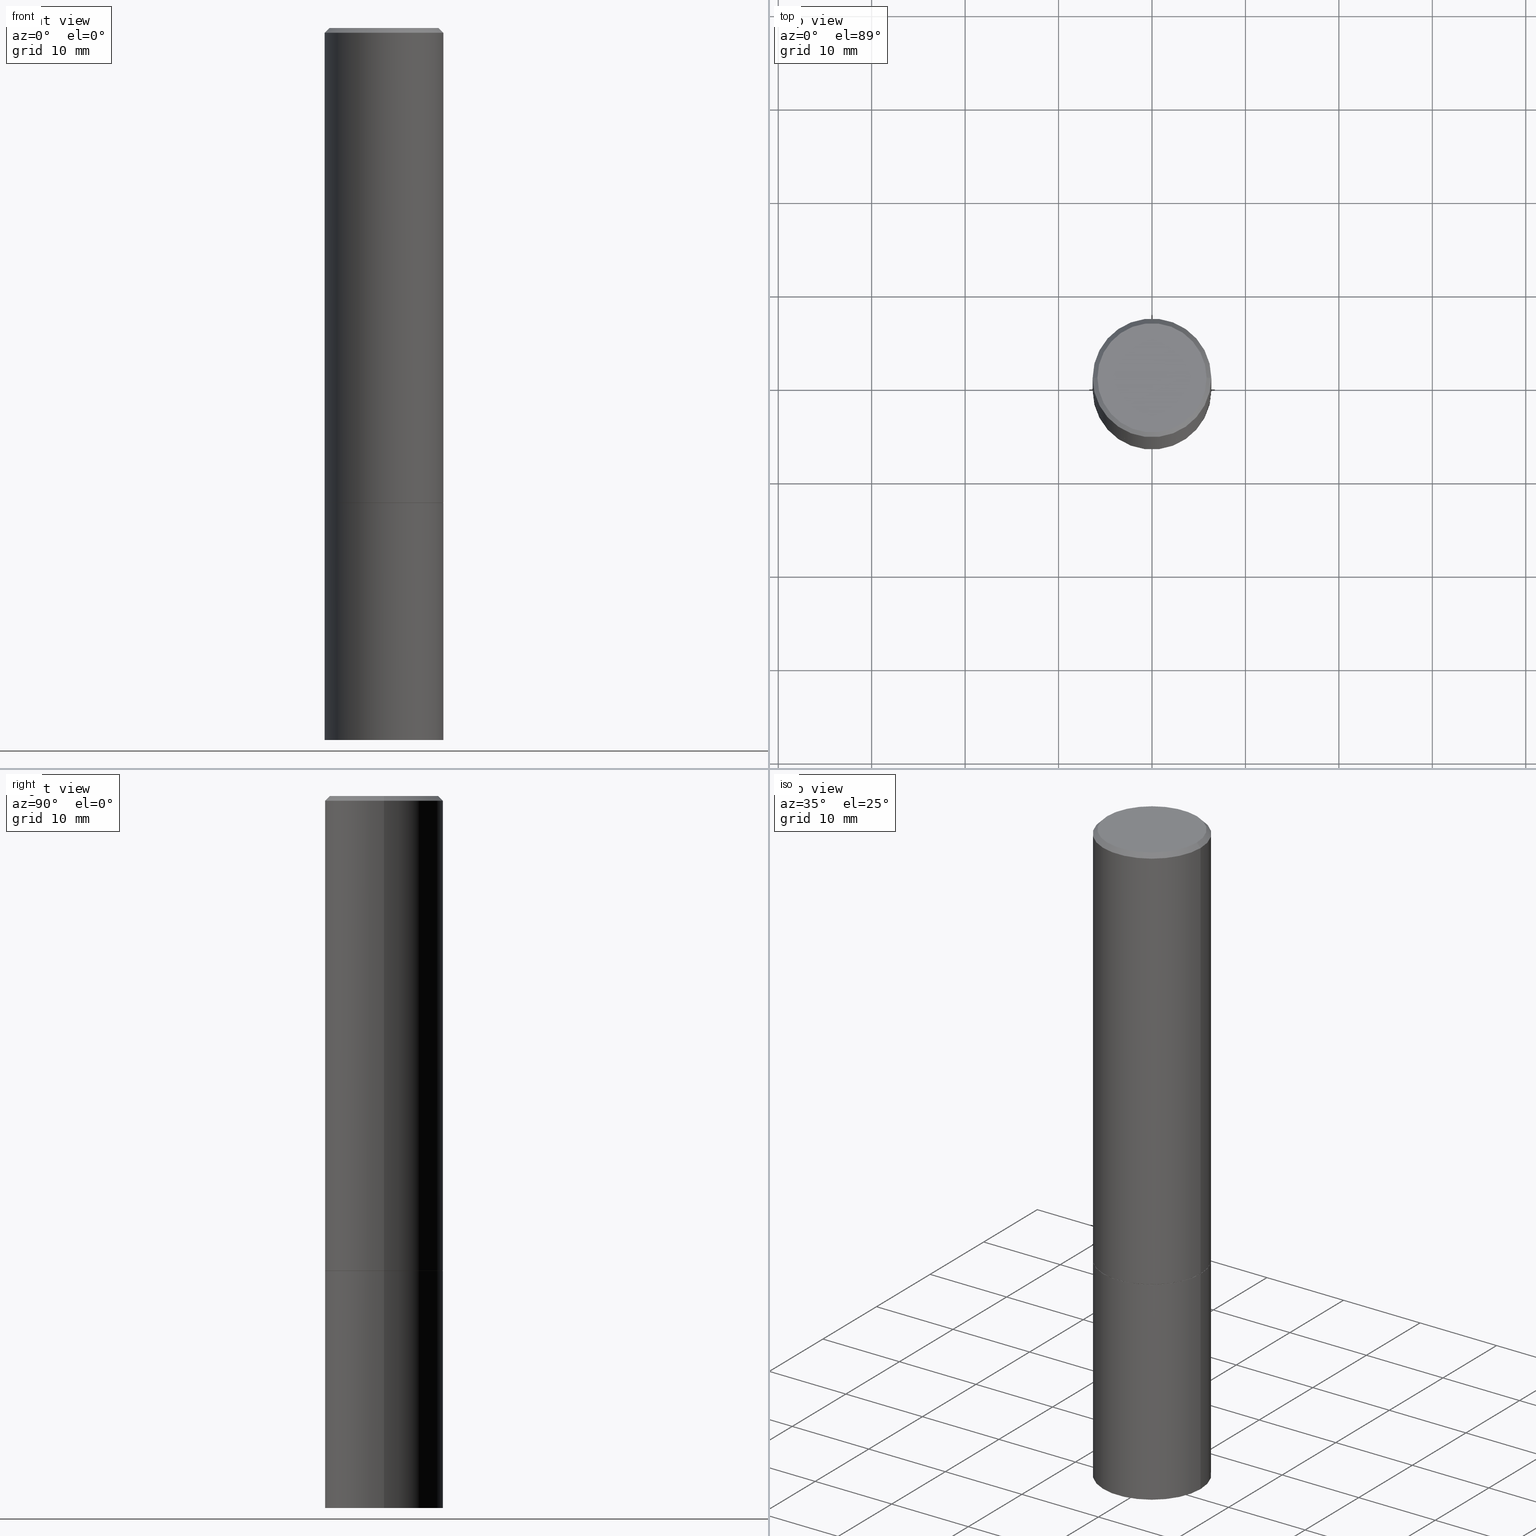
[diagram: canonical four-view strip — front | top / right | iso, engineering-drawing reading convention]
A machine part, canonical four-view strip (front | top / right | iso — engineering-drawing reading convention). The complete STEP part file that produces these views, byte-faithful:
ISO-10303-21;
HEADER;
FILE_DESCRIPTION (( 'STEP AP203' ),
    '1' );
FILE_NAME ('34865.STEP',
    '2024-02-27T18:03:12',
    ( '' ),
    ( '' ),
    'SwSTEP 2.0',
    'SolidWorks 2023',
    '' );
FILE_SCHEMA (( 'CONFIG_CONTROL_DESIGN' ));
ENDSEC;

DATA;
#1 = DIRECTION ( 'NONE',  ( 0.7071067811865469066, -7.319954787623254468E-15, -0.7071067811865481278 ) ) ;
#2 = ADVANCED_FACE ( 'NONE', ( #114 ), #49, .T. ) ;
#3 = FACE_OUTER_BOUND ( 'NONE', #57, .T. ) ;
#4 = FACE_OUTER_BOUND ( 'NONE', #78, .T. ) ;
#5 = DIRECTION ( 'NONE',  ( 0.000000000000000000, 0.000000000000000000, 1.000000000000000000 ) ) ;
#6 = AXIS2_PLACEMENT_3D ( 'NONE', #82, #31, #316 ) ;
#7 = AXIS2_PLACEMENT_3D ( 'NONE', #90, #5, #117 ) ;
#8 = DATE_TIME_ROLE ( 'creation_date' ) ;
#9 = EDGE_CURVE ( 'NONE', #105, #18, #268, .T. ) ;
#10 = AXIS2_PLACEMENT_3D ( 'NONE', #226, #342, #59 ) ;
#11 = LOCAL_TIME ( 13, 3, 12.00000000000000000, #120 ) ;
#12 = APPROVAL_STATUS ( 'not_yet_approved' ) ;
#13 = CC_DESIGN_DATE_AND_TIME_ASSIGNMENT ( #297, #42, ( #127 ) ) ;
#14 = ORIENTED_EDGE ( 'NONE', *, *, #143, .F. ) ;
#15 = CARTESIAN_POINT ( 'NONE',  ( 0.2299999999999997047, -1.681434332853597236E-15, 4.268512490111905999E-18 ) ) ;
#16 = ORIENTED_EDGE ( 'NONE', *, *, #103, .T. ) ;
#17 = LINE ( 'NONE', #246, #206 ) ;
#18 = VERTEX_POINT ( 'NONE', #263 ) ;
#19 = PERSON_AND_ORGANIZATION_ROLE ( 'design_supplier' ) ;
#20 = DIRECTION ( 'NONE',  ( -2.445468806185136597E-29, 3.491481338843145583E-15, 1.000000000000000000 ) ) ;
#21 = ORIENTED_EDGE ( 'NONE', *, *, #96, .F. ) ;
#22 = CYLINDRICAL_SURFACE ( 'NONE', #149, 0.2500000000000000000 ) ;
#23 = ORIENTED_EDGE ( 'NONE', *, *, #285, .T. ) ;
#24 = EDGE_CURVE ( 'NONE', #269, #311, #121, .T. ) ;
#25 = LINE ( 'NONE', #211, #298 ) ;
#26 = CIRCLE ( 'NONE', #158, 0.2500000000000000000 ) ;
#27 = DIRECTION ( 'NONE',  ( 1.000000000000000000, -6.982962677686266711E-15, 4.876225828469315047E-29 ) ) ;
#28 = DIRECTION ( 'NONE',  ( 1.000000000000000000, -6.982962677686266711E-15, 4.876176775795935793E-29 ) ) ;
#29 = VERTEX_POINT ( 'NONE', #139 ) ;
#30 = CYLINDRICAL_SURFACE ( 'NONE', #261, 0.2500000000000000000 ) ;
#31 = DIRECTION ( 'NONE',  ( -2.445468806185136597E-29, 3.491481338843145583E-15, 1.000000000000000000 ) ) ;
#32 = AXIS2_PLACEMENT_3D ( 'NONE', #33, #85, #27 ) ;
#33 = CARTESIAN_POINT ( 'NONE',  ( -1.043851414335219820E-46, 1.490343170380447200E-32, 4.268512490100411279E-18 ) ) ;
#34 = PRODUCT_DEFINITION ( 'UNKNOWN', '', #255, #352 ) ;
#35 = DIRECTION ( 'NONE',  ( 1.000000000000000000, -6.982962677686262766E-15, 0.000000000000000000 ) ) ;
#36 = EDGE_CURVE ( 'NONE', #18, #210, #260, .T. ) ;
#37 = MANIFOLD_SOLID_BREP ( 'Body-Move/Copy2[2]', #218 ) ;
#38 = VECTOR ( 'NONE', #364, 39.37007874015748143 ) ;
#39 = CALENDAR_DATE ( 2024, 27, 2 ) ;
#40 = EDGE_CURVE ( 'NONE', #269, #210, #109, .T. ) ;
#41 = APPROVAL_ROLE ( '' ) ;
#42 = DATE_TIME_ROLE ( 'classification_date' ) ;
#43 = VERTEX_POINT ( 'NONE', #224 ) ;
#44 = CARTESIAN_POINT ( 'NONE',  ( -0.2499999999999998612, 1.776356839400249479E-15, -1.229733772563725745E-29 ) ) ;
#45 = ORIENTED_EDGE ( 'NONE', *, *, #231, .T. ) ;
#46 = CALENDAR_DATE ( 2024, 27, 2 ) ;
#47 = DIRECTION ( 'NONE',  ( -2.445468806185136877E-29, 3.491481338843145188E-15, 1.000000000000000000 ) ) ;
#48 = ORIENTED_EDGE ( 'NONE', *, *, #220, .T. ) ;
#49 = CONICAL_SURFACE ( 'NONE', #75, 0.2499999999999997224, 0.7853981633974473908 ) ;
#50 = CARTESIAN_POINT ( 'NONE',  ( 4.890937612370287172E-31, -6.982962677686310098E-17, -0.02000000000000005593 ) ) ;
#51 = ORIENTED_EDGE ( 'NONE', *, *, #285, .F. ) ;
#52 = DIRECTION ( 'NONE',  ( -1.000000000000000000, 6.982962677686265922E-15, -4.876176775795935793E-29 ) ) ;
#53 = EDGE_LOOP ( 'NONE', ( #217, #157, #327, #245 ) ) ;
#54 = CARTESIAN_POINT ( 'NONE',  ( 0.2500000000000000000, -1.745740669421566678E-15, 1.219044193948983948E-29 ) ) ;
#55 = DIRECTION ( 'NONE',  ( 1.000000000000000000, -6.982962677686266711E-15, 0.000000000000000000 ) ) ;
#56 = CARTESIAN_POINT ( 'NONE',  ( 0.2489999999999999991, -8.721720384430172617E-15, -2.000000000000000444 ) ) ;
#57 = EDGE_LOOP ( 'NONE', ( #48, #274, #221, #51 ) ) ;
#58 = CARTESIAN_POINT ( 'NONE',  ( 7.336406418555409790E-29, -1.047444401652943635E-14, -3.000000000000000444 ) ) ;
#59 = DIRECTION ( 'NONE',  ( 1.000000000000000000, -6.982962677686266711E-15, 0.000000000000000000 ) ) ;
#60 = APPROVAL_ROLE ( '' ) ;
#61 = DIRECTION ( 'NONE',  ( -1.000000000000000000, 6.982962677686266711E-15, 0.000000000000000000 ) ) ;
#62 = APPROVAL_ROLE ( '' ) ;
#63 = APPROVAL_DATE_TIME ( #321, #132 ) ;
#64 = AXIS2_PLACEMENT_3D ( 'NONE', #88, #233, #280 ) ;
#65 = EDGE_CURVE ( 'NONE', #230, #105, #258, .T. ) ;
#66 = ORIENTED_EDGE ( 'NONE', *, *, #172, .F. ) ;
#67 = CIRCLE ( 'NONE', #273, 0.2500000000000000000 ) ;
#68 = CC_DESIGN_APPROVAL ( #132, ( #34 ) ) ;
#69 = ORIENTED_EDGE ( 'NONE', *, *, #346, .T. ) ;
#70 = DIRECTION ( 'NONE',  ( -2.445468806185136597E-29, 3.491481338843145583E-15, 1.000000000000000000 ) ) ;
#71 = ORIENTED_EDGE ( 'NONE', *, *, #24, .T. ) ;
#72 = PERSON_AND_ORGANIZATION_ROLE ( 'creator' ) ;
#73 = DIRECTION ( 'NONE',  ( -0.7071067811865469066, 2.468850131082250355E-15, -0.7071067811865481278 ) ) ;
#74 = ORIENTED_EDGE ( 'NONE', *, *, #265, .T. ) ;
#75 = AXIS2_PLACEMENT_3D ( 'NONE', #137, #202, #61 ) ;
#76 = ORGANIZATION ( 'UNSPECIFIED', 'UNSPECIFIED', '' ) ;
#77 = LINE ( 'NONE', #104, #199 ) ;
#78 = EDGE_LOOP ( 'NONE', ( #276, #74, #125, #247 ) ) ;
#79 = CARTESIAN_POINT ( 'NONE',  ( 4.890937612370273754E-29, -6.982962677686291954E-15, -2.000000000000000444 ) ) ;
#80 = DIRECTION ( 'NONE',  ( 2.445468806185136597E-29, -3.491481338843145583E-15, -1.000000000000000000 ) ) ;
#81 = CARTESIAN_POINT ( 'NONE',  ( 1.606081415867839095E-15, 0.2299999999999997047, -8.009064516888722925E-16 ) ) ;
#82 = CARTESIAN_POINT ( 'NONE',  ( 4.890937612370274875E-29, -6.982962677686292743E-15, -2.000000000000000444 ) ) ;
#83 =( NAMED_UNIT ( * ) PLANE_ANGLE_UNIT ( ) SI_UNIT ( $, .RADIAN. ) );
#84 = AXIS2_PLACEMENT_3D ( 'NONE', #159, #191, #52 ) ;
#85 = DIRECTION ( 'NONE',  ( -2.445468806185136597E-29, 3.491481338843145583E-15, 1.000000000000000000 ) ) ;
#86 = ADVANCED_FACE ( 'NONE', ( #289 ), #340, .T. ) ;
#87 = PERSON_AND_ORGANIZATION ( #240, #76 ) ;
#88 = CARTESIAN_POINT ( 'NONE',  ( 0.000000000000000000, 0.000000000000000000, 0.000000000000000000 ) ) ;
#89 = DIRECTION ( 'NONE',  ( -2.445468806185136597E-29, 3.491481338843145583E-15, 1.000000000000000000 ) ) ;
#90 = CARTESIAN_POINT ( 'NONE',  ( 0.000000000000000000, 0.000000000000000000, 0.000000000000000000 ) ) ;
#91 = CIRCLE ( 'NONE', #235, 0.2499999999999997224 ) ;
#92 = ADVANCED_FACE ( 'NONE', ( #4 ), #190, .T. ) ;
#93 = LOCAL_TIME ( 13, 3, 12.00000000000000000, #259 ) ;
#94 = SECURITY_CLASSIFICATION_LEVEL ( 'unclassified' ) ;
#95 = PERSON_AND_ORGANIZATION ( #240, #76 ) ;
#96 = EDGE_CURVE ( 'NONE', #210, #329, #98, .T. ) ;
#97 = ORIENTED_EDGE ( 'NONE', *, *, #265, .F. ) ;
#98 = CIRCLE ( 'NONE', #181, 0.2499999999999997224 ) ;
#99 = PLANE ( 'NONE',  #118 ) ;
#100 = EDGE_CURVE ( 'NONE', #18, #105, #148, .T. ) ;
#101 = PLANE ( 'NONE',  #361 ) ;
#102 = EDGE_LOOP ( 'NONE', ( #184, #362, #21, #131 ) ) ;
#103 = EDGE_CURVE ( 'NONE', #311, #269, #204, .T. ) ;
#104 = CARTESIAN_POINT ( 'NONE',  ( -0.2499999999999997224, 1.675911042644701605E-15, -0.02000000000000005593 ) ) ;
#105 = VERTEX_POINT ( 'NONE', #200 ) ;
#106 = FACE_OUTER_BOUND ( 'NONE', #212, .T. ) ;
#107 = ORIENTED_EDGE ( 'NONE', *, *, #220, .F. ) ;
#108 = DIRECTION ( 'NONE',  ( 0.7071067811864267805, -2.468850131080992517E-15, 0.7071067811866682540 ) ) ;
#109 = LINE ( 'NONE', #318, #335 ) ;
#110 = CARTESIAN_POINT ( 'NONE',  ( 4.888492143564088712E-29, -6.979471196347448158E-15, -1.999000000000000110 ) ) ;
#111 = ADVANCED_FACE ( 'NONE', ( #141 ), #165, .T. ) ;
#112 = MECHANICAL_CONTEXT ( 'NONE', #169, 'mechanical' ) ;
#113 = VECTOR ( 'NONE', #47, 39.37007874015748143 ) ;
#114 = FACE_OUTER_BOUND ( 'NONE', #155, .T. ) ;
#115 = CARTESIAN_POINT ( 'NONE',  ( 0.000000000000000000, 0.000000000000000000, 0.000000000000000000 ) ) ;
#116 = DIRECTION ( 'NONE',  ( -1.000000000000000000, 6.982962677686266711E-15, 0.000000000000000000 ) ) ;
#117 = DIRECTION ( 'NONE',  ( 1.000000000000000000, 0.000000000000000000, 0.000000000000000000 ) ) ;
#118 = AXIS2_PLACEMENT_3D ( 'NONE', #81, #270, #305 ) ;
#119 =( GEOMETRIC_REPRESENTATION_CONTEXT ( 3 ) GLOBAL_UNCERTAINTY_ASSIGNED_CONTEXT ( ( #124 ) ) GLOBAL_UNIT_ASSIGNED_CONTEXT ( ( #282, #83, #225 ) ) REPRESENTATION_CONTEXT ( 'NONE', 'WORKASPACE' ) );
#120 = COORDINATED_UNIVERSAL_TIME_OFFSET ( 5, 0, .BEHIND. ) ;
#121 = CIRCLE ( 'NONE', #351, 0.2299999999999997047 ) ;
#122 = CC_DESIGN_APPROVAL ( #215, ( #127 ) ) ;
#123 = ADVANCED_FACE ( 'NONE', ( #313 ), #286, .T. ) ;
#124 = UNCERTAINTY_MEASURE_WITH_UNIT (LENGTH_MEASURE( 1.000000000000000082E-05 ), #282, 'distance_accuracy_value', 'NONE');
#125 = ORIENTED_EDGE ( 'NONE', *, *, #145, .T. ) ;
#126 = DIRECTION ( 'NONE',  ( -1.000000000000000000, 6.982962677686265922E-15, -4.876176775795935793E-29 ) ) ;
#127 = SECURITY_CLASSIFICATION ( '', '', #94 ) ;
#128 = CARTESIAN_POINT ( 'NONE',  ( -0.2489999999999999991, -5.208412811295420884E-15, -2.000000000000000444 ) ) ;
#129 = EDGE_CURVE ( 'NONE', #105, #329, #257, .T. ) ;
#130 = CARTESIAN_POINT ( 'NONE',  ( 4.890937612370274875E-29, -6.982962677686292743E-15, -2.000000000000000444 ) ) ;
#131 = ORIENTED_EDGE ( 'NONE', *, *, #36, .F. ) ;
#132 = APPROVAL ( #140, 'UNSPECIFIED' ) ;
#133 = CARTESIAN_POINT ( 'NONE',  ( 4.890937612370273754E-29, -6.982962677686291954E-15, -2.000000000000000444 ) ) ;
#134 = VERTEX_POINT ( 'NONE', #222 ) ;
#135 = CC_DESIGN_APPROVAL ( #266, ( #255 ) ) ;
#136 = FACE_OUTER_BOUND ( 'NONE', #336, .T. ) ;
#137 = CARTESIAN_POINT ( 'NONE',  ( 4.890937612370287172E-31, -6.982962677686310098E-17, -0.02000000000000005593 ) ) ;
#138 = LENGTH_MEASURE_WITH_UNIT ( LENGTH_MEASURE( 0.02539999999999999897 ), #267 );
#139 = CARTESIAN_POINT ( 'NONE',  ( -0.2500000000000000000, -6.952346507707613689E-15, -3.000000000000000444 ) ) ;
#140 = APPROVAL_STATUS ( 'not_yet_approved' ) ;
#141 = FACE_OUTER_BOUND ( 'NONE', #53, .T. ) ;
#142 = DIRECTION ( 'NONE',  ( 1.000000000000000000, -6.982962677686266711E-15, 0.000000000000000000 ) ) ;
#143 = EDGE_CURVE ( 'NONE', #329, #210, #91, .T. ) ;
#144 = CIRCLE ( 'NONE', #290, 0.2489999999999999991 ) ;
#145 = EDGE_CURVE ( 'NONE', #357, #18, #25, .T. ) ;
#146 = DATE_AND_TIME ( #39, #166 ) ;
#147 = SHAPE_DEFINITION_REPRESENTATION ( #348, #174 ) ;
#148 = CIRCLE ( 'NONE', #10, 0.2500000000000000000 ) ;
#149 = AXIS2_PLACEMENT_3D ( 'NONE', #115, #197, #28 ) ;
#150 = DATE_AND_TIME ( #152, #281 ) ;
#151 = EDGE_LOOP ( 'NONE', ( #193, #242, #160, #355 ) ) ;
#152 = CALENDAR_DATE ( 2024, 27, 2 ) ;
#153 = PRODUCT ( '34865', '34865', '', ( #112 ) ) ;
#154 = CARTESIAN_POINT ( 'NONE',  ( 4.890937612370273754E-29, -6.982962677686291954E-15, -2.000000000000000444 ) ) ;
#155 = EDGE_LOOP ( 'NONE', ( #186, #250, #214, #253 ) ) ;
#156 = CARTESIAN_POINT ( 'NONE',  ( 4.890937612370274875E-29, -6.982962677686292743E-15, -2.000000000000000444 ) ) ;
#157 = ORIENTED_EDGE ( 'NONE', *, *, #40, .T. ) ;
#158 = AXIS2_PLACEMENT_3D ( 'NONE', #251, #301, #275 ) ;
#159 = CARTESIAN_POINT ( 'NONE',  ( 1.745740669421615390E-15, 0.2499999999999930334, -2.000000000000000888 ) ) ;
#160 = ORIENTED_EDGE ( 'NONE', *, *, #100, .F. ) ;
#161 = DIRECTION ( 'NONE',  ( -2.445468806185136597E-29, 3.491481338843145583E-15, 1.000000000000000000 ) ) ;
#162 = EDGE_LOOP ( 'NONE', ( #306, #45 ) ) ;
#163 = DIRECTION ( 'NONE',  ( 1.000000000000000000, -6.982962677686266711E-15, 0.000000000000000000 ) ) ;
#164 = CARTESIAN_POINT ( 'NONE',  ( -1.043851414335219820E-46, 1.490343170380447200E-32, 4.268512490100411279E-18 ) ) ;
#165 = CONICAL_SURFACE ( 'NONE', #238, 0.2499999999999997224, 0.7853981633974473908 ) ;
#166 = LOCAL_TIME ( 13, 3, 12.00000000000000000, #295 ) ;
#167 = CARTESIAN_POINT ( 'NONE',  ( 0.2499999999999998612, -1.745740669421565692E-15, 1.219044193948983248E-29 ) ) ;
#168 = APPLICATION_PROTOCOL_DEFINITION ( 'international standard', 'config_control_design', 1994, #169 ) ;
#169 = APPLICATION_CONTEXT ( 'configuration controlled 3d designs of mechanical parts and assemblies' ) ;
#170 = DIRECTION ( 'NONE',  ( -2.445468806185136597E-29, 3.491481338843145583E-15, 1.000000000000000000 ) ) ;
#171 = CALENDAR_DATE ( 2024, 27, 2 ) ;
#172 = EDGE_CURVE ( 'NONE', #357, #230, #144, .T. ) ;
#173 = DIRECTION ( 'NONE',  ( -2.445468806185136597E-29, 3.491481338843145583E-15, 1.000000000000000000 ) ) ;
#174 = ADVANCED_BREP_SHAPE_REPRESENTATION ( '34865', ( #283, #37, #7 ), #119 ) ;
#175 = APPROVAL_DATE_TIME ( #236, #266 ) ;
#176 = AXIS2_PLACEMENT_3D ( 'NONE', #133, #243, #216 ) ;
#177 = ADVANCED_FACE ( 'NONE', ( #328 ), #337, .F. ) ;
#178 = CC_DESIGN_SECURITY_CLASSIFICATION ( #127, ( #255 ) ) ;
#179 = PERSON_AND_ORGANIZATION_ROLE ( 'design_owner' ) ;
#180 = PERSON_AND_ORGANIZATION_ROLE ( 'classification_officer' ) ;
#181 = AXIS2_PLACEMENT_3D ( 'NONE', #365, #284, #55 ) ;
#182 = ORIENTED_EDGE ( 'NONE', *, *, #346, .F. ) ;
#183 = APPROVAL_DATE_TIME ( #150, #215 ) ;
#184 = ORIENTED_EDGE ( 'NONE', *, *, #100, .T. ) ;
#185 = CARTESIAN_POINT ( 'NONE',  ( -0.2500000000000000000, -6.952346507707613689E-15, -2.000000000000000444 ) ) ;
#186 = ORIENTED_EDGE ( 'NONE', *, *, #40, .F. ) ;
#187 = COORDINATED_UNIVERSAL_TIME_OFFSET ( 5, 0, .BEHIND. ) ;
#188 = FACE_OUTER_BOUND ( 'NONE', #162, .T. ) ;
#189 = ORIENTED_EDGE ( 'NONE', *, *, #129, .F. ) ;
#190 = CONICAL_SURFACE ( 'NONE', #6, 0.2489999999999999991, 0.7853981633972775267 ) ;
#191 = DIRECTION ( 'NONE',  ( 2.438088387897960049E-29, -3.491481338843145188E-15, -1.000000000000000000 ) ) ;
#192 = ADVANCED_FACE ( 'NONE', ( #106 ), #101, .T. ) ;
#193 = ORIENTED_EDGE ( 'NONE', *, *, #172, .T. ) ;
#194 = DIRECTION ( 'NONE',  ( 1.000000000000000000, -6.982962677686266711E-15, 0.000000000000000000 ) ) ;
#195 = DIRECTION ( 'NONE',  ( 1.000000000000000000, -6.982962677686266711E-15, 4.876225828469315047E-29 ) ) ;
#196 = ADVANCED_FACE ( 'NONE', ( #136 ), #99, .F. ) ;
#197 = DIRECTION ( 'NONE',  ( -2.445468806185136597E-29, 3.491481338843145583E-15, 1.000000000000000000 ) ) ;
#198 = CARTESIAN_POINT ( 'NONE',  ( -0.2489999999999999991, -5.213711265643643286E-15, -2.000000000000000444 ) ) ;
#199 = VECTOR ( 'NONE', #73, 39.37007874015748143 ) ;
#200 = CARTESIAN_POINT ( 'NONE',  ( -0.2499999999999999722, -1.748293572161903489E-15, -1.999000000000000110 ) ) ;
#201 = CARTESIAN_POINT ( 'NONE',  ( -0.2499999999999997224, 1.675911042644701605E-15, -0.02000000000000005593 ) ) ;
#202 = DIRECTION ( 'NONE',  ( 2.445468806185136597E-29, -3.491481338843145583E-15, -1.000000000000000000 ) ) ;
#203 = PERSON_AND_ORGANIZATION ( #240, #76 ) ;
#204 = CIRCLE ( 'NONE', #32, 0.2299999999999997047 ) ;
#205 = APPLICATION_PROTOCOL_DEFINITION ( 'international standard', 'config_control_design', 1994, #228 ) ;
#206 = VECTOR ( 'NONE', #356, 39.37007874015748143 ) ;
#207 = EDGE_CURVE ( 'NONE', #311, #329, #77, .T. ) ;
#208 = DIMENSIONAL_EXPONENTS ( 1.000000000000000000, 0.000000000000000000, 0.000000000000000000, 0.000000000000000000, 0.000000000000000000, 0.000000000000000000, 0.000000000000000000 ) ;
#209 = AXIS2_PLACEMENT_3D ( 'NONE', #79, #312, #163 ) ;
#210 = VERTEX_POINT ( 'NONE', #339 ) ;
#211 = CARTESIAN_POINT ( 'NONE',  ( 0.2489999999999999991, -8.721720384430172617E-15, -2.000000000000000444 ) ) ;
#212 = EDGE_LOOP ( 'NONE', ( #107, #182 ) ) ;
#213 = LINE ( 'NONE', #54, #113 ) ;
#214 = ORIENTED_EDGE ( 'NONE', *, *, #207, .T. ) ;
#215 = APPROVAL ( #12, 'UNSPECIFIED' ) ;
#216 = DIRECTION ( 'NONE',  ( 1.000000000000000000, -6.982962677686265922E-15, 4.876176775795935793E-29 ) ) ;
#217 = ORIENTED_EDGE ( 'NONE', *, *, #24, .F. ) ;
#218 = CLOSED_SHELL ( 'NONE', ( #296, #86, #111, #2, #123, #92, #177, #196 ) ) ;
#219 = CARTESIAN_POINT ( 'NONE',  ( 4.890937612370274875E-29, -6.982962677686292743E-15, -2.000000000000000444 ) ) ;
#220 = EDGE_CURVE ( 'NONE', #43, #29, #26, .T. ) ;
#221 = ORIENTED_EDGE ( 'NONE', *, *, #237, .F. ) ;
#222 = CARTESIAN_POINT ( 'NONE',  ( 0.2500000000000000000, -8.728703347107858632E-15, -2.000000000000000444 ) ) ;
#223 = CC_DESIGN_DATE_AND_TIME_ASSIGNMENT ( #146, #8, ( #34 ) ) ;
#224 = CARTESIAN_POINT ( 'NONE',  ( 0.2500000000000000000, -1.222018468595100303E-14, -3.000000000000000444 ) ) ;
#225 =( NAMED_UNIT ( * ) SI_UNIT ( $, .STERADIAN. ) SOLID_ANGLE_UNIT ( ) );
#226 = CARTESIAN_POINT ( 'NONE',  ( 4.888492143564088712E-29, -6.979471196347448158E-15, -1.999000000000000110 ) ) ;
#227 = VECTOR ( 'NONE', #345, 39.37007874015748143 ) ;
#228 = APPLICATION_CONTEXT ( 'configuration controlled 3d designs of mechanical parts and assemblies' ) ;
#229 = PERSON_AND_ORGANIZATION ( #240, #76 ) ;
#230 = VERTEX_POINT ( 'NONE', #128 ) ;
#231 = EDGE_CURVE ( 'NONE', #271, #134, #67, .T. ) ;
#232 = DIRECTION ( 'NONE',  ( -2.445468806185136597E-29, 3.491481338843145583E-15, 1.000000000000000000 ) ) ;
#233 = DIRECTION ( 'NONE',  ( -2.445468806185136597E-29, 3.491481338843145583E-15, 1.000000000000000000 ) ) ;
#234 = DIRECTION ( 'NONE',  ( -2.445468806185136597E-29, 3.491481338843145583E-15, 1.000000000000000000 ) ) ;
#235 = AXIS2_PLACEMENT_3D ( 'NONE', #50, #20, #310 ) ;
#236 = DATE_AND_TIME ( #171, #11 ) ;
#237 = EDGE_CURVE ( 'NONE', #134, #271, #325, .T. ) ;
#238 = AXIS2_PLACEMENT_3D ( 'NONE', #317, #80, #116 ) ;
#239 = AXIS2_PLACEMENT_3D ( 'NONE', #58, #234, #35 ) ;
#240 = PERSON ( 'UNSPECIFIED', 'UNSPECIFIED', 'UNSPECIFIED', ('UNSPECIFIED'), ('UNSPECIFIED'), ('UNSPECIFIED') ) ;
#241 = PERSON_AND_ORGANIZATION ( #240, #76 ) ;
#242 = ORIENTED_EDGE ( 'NONE', *, *, #65, .T. ) ;
#243 = DIRECTION ( 'NONE',  ( -2.438088387897960049E-29, 3.491481338843145188E-15, 1.000000000000000000 ) ) ;
#244 = CIRCLE ( 'NONE', #293, 0.2489999999999999991 ) ;
#245 = ORIENTED_EDGE ( 'NONE', *, *, #207, .F. ) ;
#246 = CARTESIAN_POINT ( 'NONE',  ( -0.2500000000000000000, 1.776356839400250465E-15, -1.229733772563726445E-29 ) ) ;
#247 = ORIENTED_EDGE ( 'NONE', *, *, #9, .F. ) ;
#248 = CC_DESIGN_PERSON_AND_ORGANIZATION_ASSIGNMENT ( #229, #349, ( #34 ) ) ;
#249 = DIRECTION ( 'NONE',  ( -2.445468806185136877E-29, 3.491481338843145188E-15, 1.000000000000000000 ) ) ;
#250 = ORIENTED_EDGE ( 'NONE', *, *, #103, .F. ) ;
#251 = CARTESIAN_POINT ( 'NONE',  ( 7.336406418555409790E-29, -1.047444401652943635E-14, -3.000000000000000444 ) ) ;
#252 = VECTOR ( 'NONE', #249, 39.37007874015748143 ) ;
#253 = ORIENTED_EDGE ( 'NONE', *, *, #143, .T. ) ;
#254 = APPROVAL_PERSON_ORGANIZATION ( #87, #266, #62 ) ;
#255 = PRODUCT_DEFINITION_FORMATION_WITH_SPECIFIED_SOURCE ( 'ANY', '', #153, .NOT_KNOWN. ) ;
#256 = DIRECTION ( 'NONE',  ( -2.445468806185136597E-29, 3.491481338843145583E-15, 1.000000000000000000 ) ) ;
#257 = LINE ( 'NONE', #44, #252 ) ;
#258 = LINE ( 'NONE', #198, #227 ) ;
#259 = COORDINATED_UNIVERSAL_TIME_OFFSET ( 5, 0, .BEHIND. ) ;
#260 = LINE ( 'NONE', #167, #38 ) ;
#261 = AXIS2_PLACEMENT_3D ( 'NONE', #287, #232, #314 ) ;
#262 = PERSON_AND_ORGANIZATION ( #240, #76 ) ;
#263 = CARTESIAN_POINT ( 'NONE',  ( 0.2500000000000000000, -8.725211865769015625E-15, -1.999000000000000110 ) ) ;
#264 = CC_DESIGN_PERSON_AND_ORGANIZATION_ASSIGNMENT ( #95, #19, ( #255 ) ) ;
#265 = EDGE_CURVE ( 'NONE', #230, #357, #244, .T. ) ;
#266 = APPROVAL ( #319, 'UNSPECIFIED' ) ;
#267 =( LENGTH_UNIT ( ) NAMED_UNIT ( * ) SI_UNIT ( $, .METRE. ) );
#268 = CIRCLE ( 'NONE', #315, 0.2500000000000000000 ) ;
#269 = VERTEX_POINT ( 'NONE', #15 ) ;
#270 = DIRECTION ( 'NONE',  ( 2.438088387897960049E-29, -3.491481338843145188E-15, -1.000000000000000000 ) ) ;
#271 = VERTEX_POINT ( 'NONE', #185 ) ;
#272 = DIRECTION ( 'NONE',  ( -2.445468806185136597E-29, 3.491481338843145583E-15, 1.000000000000000000 ) ) ;
#273 = AXIS2_PLACEMENT_3D ( 'NONE', #154, #161, #360 ) ;
#274 = ORIENTED_EDGE ( 'NONE', *, *, #308, .T. ) ;
#275 = DIRECTION ( 'NONE',  ( 1.000000000000000000, -6.982962677686262766E-15, 0.000000000000000000 ) ) ;
#276 = ORIENTED_EDGE ( 'NONE', *, *, #65, .F. ) ;
#277 = FACE_OUTER_BOUND ( 'NONE', #300, .T. ) ;
#278 = EDGE_LOOP ( 'NONE', ( #66, #97 ) ) ;
#279 = FACE_OUTER_BOUND ( 'NONE', #151, .T. ) ;
#280 = DIRECTION ( 'NONE',  ( 1.000000000000000000, -6.982962677686266711E-15, 4.876176775795935793E-29 ) ) ;
#281 = LOCAL_TIME ( 13, 3, 12.00000000000000000, #187 ) ;
#282 =( CONVERSION_BASED_UNIT ( 'INCH', #138 ) LENGTH_UNIT ( ) NAMED_UNIT ( #208 ) );
#283 = MANIFOLD_SOLID_BREP ( 'Body-Move/Copy2[1]', #341 ) ;
#284 = DIRECTION ( 'NONE',  ( -2.445468806185136597E-29, 3.491481338843145583E-15, 1.000000000000000000 ) ) ;
#285 = EDGE_CURVE ( 'NONE', #43, #134, #213, .T. ) ;
#286 = CYLINDRICAL_SURFACE ( 'NONE', #64, 0.2499999999999998612 ) ;
#287 = CARTESIAN_POINT ( 'NONE',  ( 0.000000000000000000, 0.000000000000000000, 0.000000000000000000 ) ) ;
#288 = CC_DESIGN_PERSON_AND_ORGANIZATION_ASSIGNMENT ( #241, #180, ( #127 ) ) ;
#289 = FACE_OUTER_BOUND ( 'NONE', #102, .T. ) ;
#290 = AXIS2_PLACEMENT_3D ( 'NONE', #130, #256, #354 ) ;
#291 = CONICAL_SURFACE ( 'NONE', #326, 0.2489999999999999991, 0.7853981633972775267 ) ;
#292 = PERSON_AND_ORGANIZATION ( #240, #76 ) ;
#293 = AXIS2_PLACEMENT_3D ( 'NONE', #219, #70, #194 ) ;
#294 = CIRCLE ( 'NONE', #239, 0.2500000000000000000 ) ;
#295 = COORDINATED_UNIVERSAL_TIME_OFFSET ( 5, 0, .BEHIND. ) ;
#296 = ADVANCED_FACE ( 'NONE', ( #279 ), #291, .T. ) ;
#297 = DATE_AND_TIME ( #46, #343 ) ;
#298 = VECTOR ( 'NONE', #108, 39.37007874015748143 ) ;
#299 = APPROVAL_PERSON_ORGANIZATION ( #262, #132, #60 ) ;
#300 = EDGE_LOOP ( 'NONE', ( #309, #69, #23, #332 ) ) ;
#301 = DIRECTION ( 'NONE',  ( -2.445468806185136597E-29, 3.491481338843145583E-15, 1.000000000000000000 ) ) ;
#302 = EDGE_LOOP ( 'NONE', ( #189, #353, #359, #14 ) ) ;
#303 = COORDINATED_UNIVERSAL_TIME_OFFSET ( 5, 0, .BEHIND. ) ;
#304 = CC_DESIGN_PERSON_AND_ORGANIZATION_ASSIGNMENT ( #203, #179, ( #153 ) ) ;
#305 = DIRECTION ( 'NONE',  ( -1.000000000000000000, 6.982962677686265922E-15, -4.876176775795935793E-29 ) ) ;
#306 = ORIENTED_EDGE ( 'NONE', *, *, #237, .T. ) ;
#307 = PLANE ( 'NONE',  #84 ) ;
#308 = EDGE_CURVE ( 'NONE', #29, #271, #17, .T. ) ;
#309 = ORIENTED_EDGE ( 'NONE', *, *, #308, .F. ) ;
#310 = DIRECTION ( 'NONE',  ( 1.000000000000000000, -6.982962677686266711E-15, 0.000000000000000000 ) ) ;
#311 = VERTEX_POINT ( 'NONE', #331 ) ;
#312 = DIRECTION ( 'NONE',  ( -2.445468806185136597E-29, 3.491481338843145583E-15, 1.000000000000000000 ) ) ;
#313 = FACE_OUTER_BOUND ( 'NONE', #302, .T. ) ;
#314 = DIRECTION ( 'NONE',  ( 1.000000000000000000, -6.982962677686266711E-15, 4.876176775795935793E-29 ) ) ;
#315 = AXIS2_PLACEMENT_3D ( 'NONE', #110, #173, #142 ) ;
#316 = DIRECTION ( 'NONE',  ( 1.000000000000000000, -6.982962677686266711E-15, 0.000000000000000000 ) ) ;
#317 = CARTESIAN_POINT ( 'NONE',  ( 4.890937612370287172E-31, -6.982962677686310098E-17, -0.02000000000000005593 ) ) ;
#318 = CARTESIAN_POINT ( 'NONE',  ( 0.2499999999999997224, -1.784954126219744217E-15, -0.02000000000000005593 ) ) ;
#319 = APPROVAL_STATUS ( 'not_yet_approved' ) ;
#320 = AXIS2_PLACEMENT_3D ( 'NONE', #347, #170, #338 ) ;
#321 = DATE_AND_TIME ( #366, #93 ) ;
#322 = ADVANCED_FACE ( 'NONE', ( #188 ), #307, .F. ) ;
#323 = APPROVAL_PERSON_ORGANIZATION ( #330, #215, #41 ) ;
#324 = ADVANCED_FACE ( 'NONE', ( #277 ), #22, .T. ) ;
#325 = CIRCLE ( 'NONE', #209, 0.2500000000000000000 ) ;
#326 = AXIS2_PLACEMENT_3D ( 'NONE', #156, #272, #334 ) ;
#327 = ORIENTED_EDGE ( 'NONE', *, *, #96, .T. ) ;
#328 = FACE_OUTER_BOUND ( 'NONE', #278, .T. ) ;
#329 = VERTEX_POINT ( 'NONE', #201 ) ;
#330 = PERSON_AND_ORGANIZATION ( #240, #76 ) ;
#331 = CARTESIAN_POINT ( 'NONE',  ( -0.2299999999999997047, 1.640996229256270547E-15, 4.268512490089056766E-18 ) ) ;
#332 = ORIENTED_EDGE ( 'NONE', *, *, #231, .F. ) ;
#333 = PRODUCT_RELATED_PRODUCT_CATEGORY ( 'detail', '', ( #153 ) ) ;
#334 = DIRECTION ( 'NONE',  ( 1.000000000000000000, -6.982962677686266711E-15, 0.000000000000000000 ) ) ;
#335 = VECTOR ( 'NONE', #1, 39.37007874015748143 ) ;
#336 = EDGE_LOOP ( 'NONE', ( #16, #71 ) ) ;
#337 = PLANE ( 'NONE',  #176 ) ;
#338 = DIRECTION ( 'NONE',  ( 1.000000000000000000, -6.982962677686266711E-15, 4.876176775795935793E-29 ) ) ;
#339 = CARTESIAN_POINT ( 'NONE',  ( 0.2499999999999997224, -1.784954126219744217E-15, -0.02000000000000005593 ) ) ;
#340 = CYLINDRICAL_SURFACE ( 'NONE', #320, 0.2499999999999998612 ) ;
#341 = CLOSED_SHELL ( 'NONE', ( #344, #192, #322, #324 ) ) ;
#342 = DIRECTION ( 'NONE',  ( -2.445468806185136597E-29, 3.491481338843145583E-15, 1.000000000000000000 ) ) ;
#343 = LOCAL_TIME ( 13, 3, 12.00000000000000000, #303 ) ;
#344 = ADVANCED_FACE ( 'NONE', ( #3 ), #30, .T. ) ;
#345 = DIRECTION ( 'NONE',  ( -0.7071067811864267805, 7.493145998869918709E-15, 0.7071067811866682540 ) ) ;
#346 = EDGE_CURVE ( 'NONE', #29, #43, #294, .T. ) ;
#347 = CARTESIAN_POINT ( 'NONE',  ( 0.000000000000000000, 0.000000000000000000, 0.000000000000000000 ) ) ;
#348 = PRODUCT_DEFINITION_SHAPE ( 'NONE', 'NONE',  #34 ) ;
#349 = PERSON_AND_ORGANIZATION_ROLE ( 'creator' ) ;
#350 = CC_DESIGN_PERSON_AND_ORGANIZATION_ASSIGNMENT ( #292, #72, ( #255 ) ) ;
#351 = AXIS2_PLACEMENT_3D ( 'NONE', #164, #89, #195 ) ;
#352 = DESIGN_CONTEXT ( 'detailed design', #228, 'design' ) ;
#353 = ORIENTED_EDGE ( 'NONE', *, *, #9, .T. ) ;
#354 = DIRECTION ( 'NONE',  ( 1.000000000000000000, -6.982962677686266711E-15, 0.000000000000000000 ) ) ;
#355 = ORIENTED_EDGE ( 'NONE', *, *, #145, .F. ) ;
#356 = DIRECTION ( 'NONE',  ( -2.445468806185136877E-29, 3.491481338843145188E-15, 1.000000000000000000 ) ) ;
#357 = VERTEX_POINT ( 'NONE', #56 ) ;
#358 = DIRECTION ( 'NONE',  ( 2.438088387897960049E-29, -3.491481338843145188E-15, -1.000000000000000000 ) ) ;
#359 = ORIENTED_EDGE ( 'NONE', *, *, #36, .T. ) ;
#360 = DIRECTION ( 'NONE',  ( 1.000000000000000000, -6.982962677686266711E-15, 0.000000000000000000 ) ) ;
#361 = AXIS2_PLACEMENT_3D ( 'NONE', #363, #358, #126 ) ;
#362 = ORIENTED_EDGE ( 'NONE', *, *, #129, .T. ) ;
#363 = CARTESIAN_POINT ( 'NONE',  ( 1.745740669421639647E-15, 0.2499999999999895084, -3.000000000000001332 ) ) ;
#364 = DIRECTION ( 'NONE',  ( -2.445468806185136877E-29, 3.491481338843145188E-15, 1.000000000000000000 ) ) ;
#365 = CARTESIAN_POINT ( 'NONE',  ( 4.890937612370287172E-31, -6.982962677686310098E-17, -0.02000000000000005593 ) ) ;
#366 = CALENDAR_DATE ( 2024, 27, 2 ) ;
ENDSEC;
END-ISO-10303-21;
